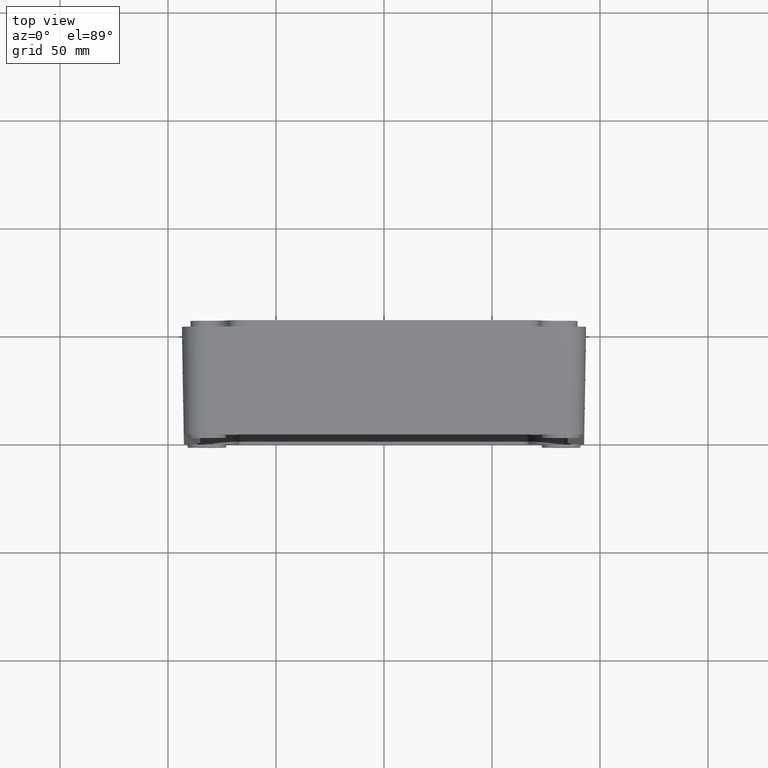
[diagram: clean part render]
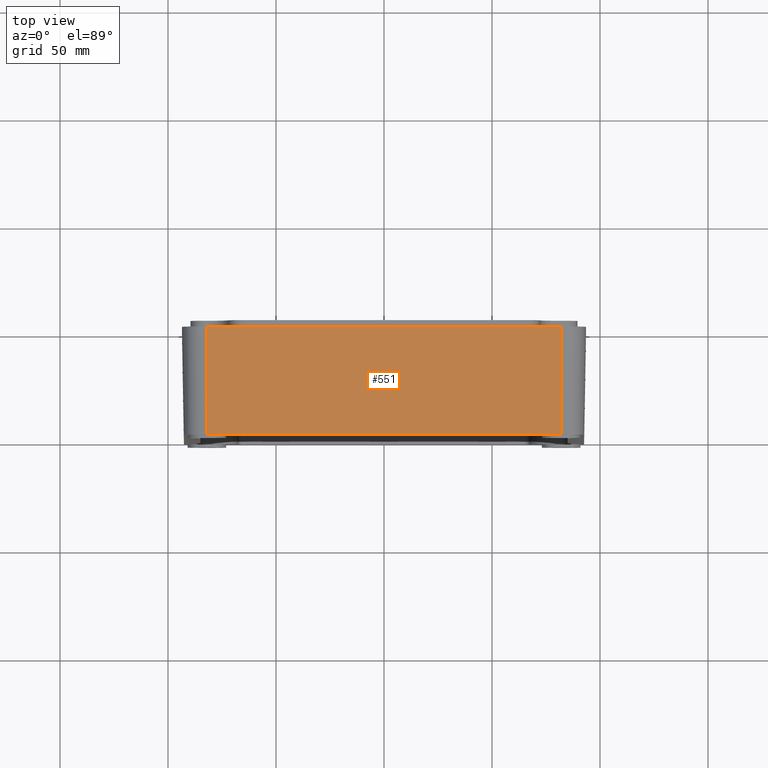
[diagram: same view with one face highlighted and labeled with its STEP entity id]
A machine part, top view. The second image highlights one B-rep face of the part: STEP entity #551.
In plain terms, the highlighted planar face has unit normal (0, -0.0175, 0.9998).
Its self-contained STEP definition (entity closure, byte-faithful):
#50 = VERTEX_POINT ( 'NONE', #1856 ) ;
#76 = PLANE ( 'NONE',  #1950 ) ;
#85 = DIRECTION ( 'NONE',  ( 0.0000000000000000000, -0.01745240643728355300, 0.9998476951563912700 ) ) ;
#89 = CARTESIAN_POINT ( 'NONE',  ( -82.00000000000001400, 0.0000000000000000000, 138.5000000000000000 ) ) ;
#144 = VERTEX_POINT ( 'NONE', #89 ) ;
#248 = DIRECTION ( 'NONE',  ( 1.000000000000000000, 0.0000000000000000000, -0.0000000000000000000 ) ) ;
#323 = EDGE_CURVE ( 'NONE', #50, #2858, #760, .T. ) ;
#355 = LINE ( 'NONE', #2739, #1354 ) ;
#418 = EDGE_CURVE ( 'NONE', #144, #2858, #355, .T. ) ;
#551 = ADVANCED_FACE ( 'NONE', ( #1658 ), #76, .T. ) ;
#592 = LINE ( 'NONE', #1627, #2490 ) ;
#633 = ORIENTED_EDGE ( 'NONE', *, *, #2083, .T. ) ;
#752 = DIRECTION ( 'NONE',  ( 0.0000000000000000000, -0.9998476951563911600, -0.01745240643728355000 ) ) ;
#760 = LINE ( 'NONE', #1129, #2267 ) ;
#807 = EDGE_LOOP ( 'NONE', ( #2690, #1031, #633, #2411 ) ) ;
#909 = DIRECTION ( 'NONE',  ( 0.0000000000000000000, 0.9998476951563911600, 0.01745240643728355000 ) ) ;
#953 = DIRECTION ( 'NONE',  ( 1.000000000000000000, 0.0000000000000000000, 0.0000000000000000000 ) ) ;
#1006 = CARTESIAN_POINT ( 'NONE',  ( -82.00000000000001400, 0.0000000000000000000, 138.5000000000000000 ) ) ;
#1031 = ORIENTED_EDGE ( 'NONE', *, *, #1616, .F. ) ;
#1129 = CARTESIAN_POINT ( 'NONE',  ( 82.00000000000001400, 0.0000000000000000000, 138.5000000000000000 ) ) ;
#1218 = VECTOR ( 'NONE', #248, 1000.000000000000000 ) ;
#1354 = VECTOR ( 'NONE', #953, 1000.000000000000000 ) ;
#1514 = CARTESIAN_POINT ( 'NONE',  ( 82.00000000000001400, 0.0000000000000000000, 138.5000000000000000 ) ) ;
#1605 = VERTEX_POINT ( 'NONE', #2082 ) ;
#1607 = CARTESIAN_POINT ( 'NONE',  ( -82.00000000000001400, -50.00000000000000000, 137.6272467535891100 ) ) ;
#1616 = EDGE_CURVE ( 'NONE', #1605, #144, #592, .T. ) ;
#1627 = CARTESIAN_POINT ( 'NONE',  ( -82.00000000000001400, 0.0000000000000000000, 138.5000000000000000 ) ) ;
#1658 = FACE_OUTER_BOUND ( 'NONE', #807, .T. ) ;
#1856 = CARTESIAN_POINT ( 'NONE',  ( 82.00000000000001400, -50.00000000000000000, 137.6272467535891300 ) ) ;
#1950 = AXIS2_PLACEMENT_3D ( 'NONE', #1006, #85, #752 ) ;
#2082 = CARTESIAN_POINT ( 'NONE',  ( -82.00000000000001400, -50.00000000000000000, 137.6272467535891300 ) ) ;
#2083 = EDGE_CURVE ( 'NONE', #1605, #50, #2416, .T. ) ;
#2267 = VECTOR ( 'NONE', #909, 1000.000000000000200 ) ;
#2411 = ORIENTED_EDGE ( 'NONE', *, *, #323, .T. ) ;
#2416 = LINE ( 'NONE', #1607, #1218 ) ;
#2490 = VECTOR ( 'NONE', #2786, 1000.000000000000200 ) ;
#2690 = ORIENTED_EDGE ( 'NONE', *, *, #418, .F. ) ;
#2739 = CARTESIAN_POINT ( 'NONE',  ( -82.00000000000001400, 0.0000000000000000000, 138.5000000000000000 ) ) ;
#2786 = DIRECTION ( 'NONE',  ( 0.0000000000000000000, 0.9998476951563911600, 0.01745240643728355000 ) ) ;
#2858 = VERTEX_POINT ( 'NONE', #1514 ) ;